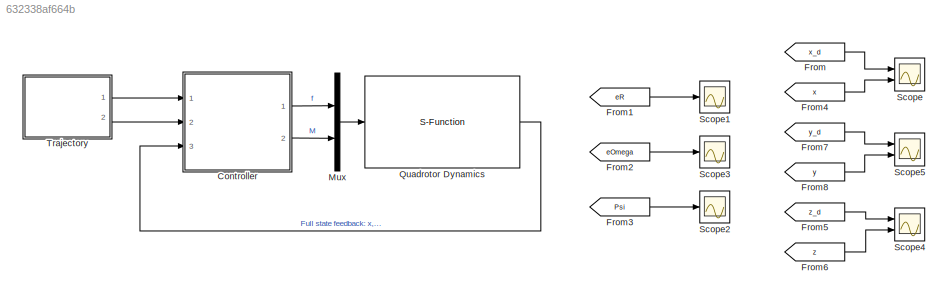
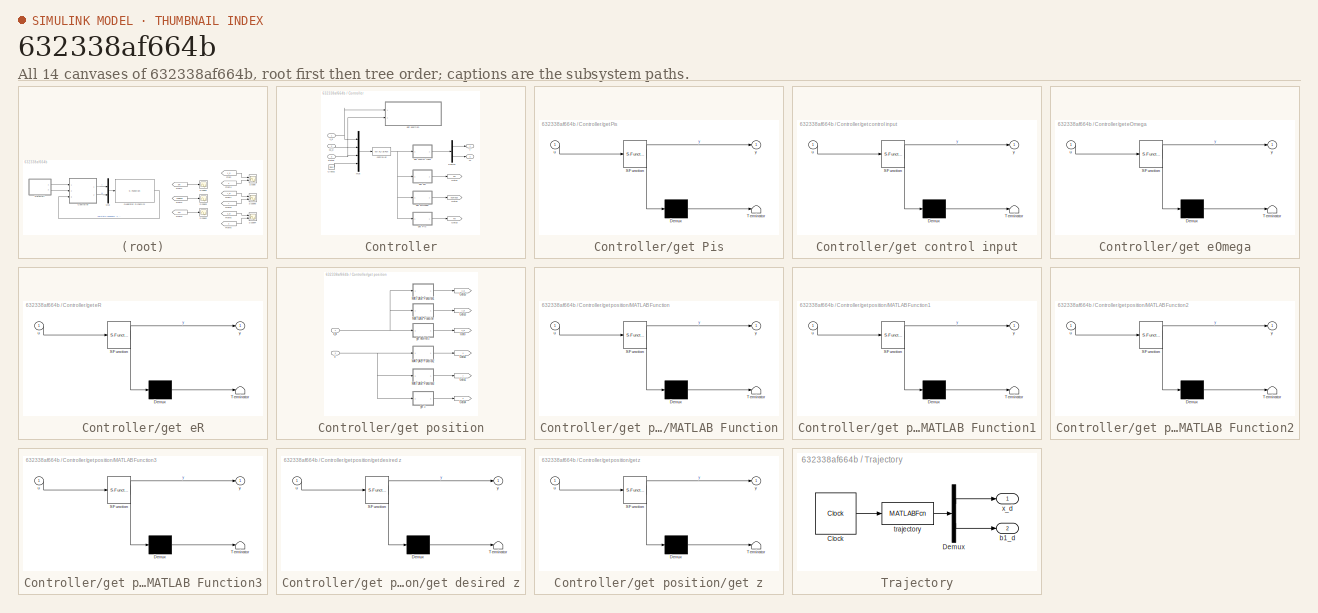
[diagram: thumbnail index - all 14 canvases of the model, root first then tree order]
MODEL slx_632338af664b
KIND model
CONFIG AbsTol = auto
CONFIG EnableMultiTasking = on
CONFIG FixedStep = 0.001
CONFIG InitFcn = param
CONFIG MaxStep = auto
CONFIG MinStep = auto
CONFIG RelTol = 1e-3
CONFIG SampleTimeConstraint = Unconstrained
CONFIG Solver = ode45
CONFIG SolverName = ode45
CONFIG StartTime = 0.0
CONFIG StopTime = 20
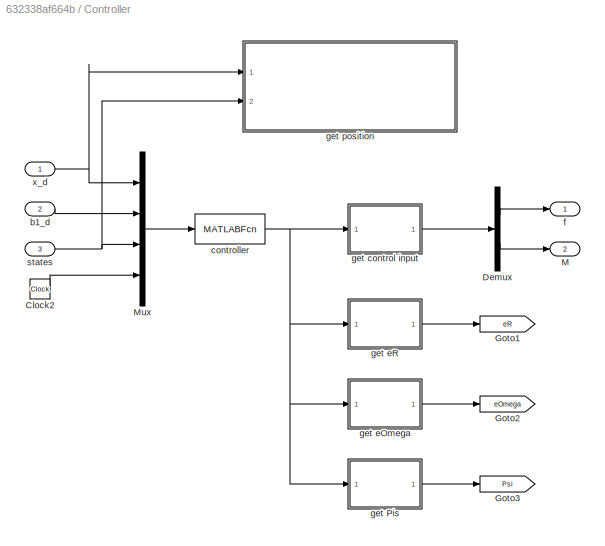
BLOCK [SubSystem] Controller
  Ports = [3, 2]
  RequestExecContextInheritance = off
BLOCK [Clock] Controller/Clock2
BLOCK [Demux] Controller/Demux
  DisplayOption = bar
  Outputs = 2
  Ports = [1, 2]
BLOCK [Goto] Controller/Goto1
  GotoTag = eR
  TagVisibility = global
BLOCK [Goto] Controller/Goto2
  GotoTag = eOmega
  TagVisibility = global
BLOCK [Goto] Controller/Goto3
  GotoTag = Psi
  TagVisibility = global
BLOCK [Outport] Controller/M
  IconDisplay = Port number
  Port = 2
BLOCK [Mux] Controller/Mux
  DisplayOption = bar
  Ports = [4, 1]
BLOCK [Inport] Controller/b1_d
  IconDisplay = Port number
  Port = 2
BLOCK [MATLABFcn] Controller/controller
  MATLABFcn = controller(u,P)
  OutputDimensions = 11
  Ports = [1, 1]
  SampleTime = P.Ts
BLOCK [Outport] Controller/f
  IconDisplay = Port number
BLOCK [SubSystem] Controller/get Pis
  ErrorFcn = Stateflow.Translate.translate
  PermitHierarchicalResolution = ExplicitOnly
  Ports = [1, 1]
  RequestExecContextInheritance = off
  SFBlockType = MATLAB Function
  TreatAsAtomicUnit = on
BLOCK [Demux] Controller/get Pis/ Demux 
  Outputs = 1
  Ports = [1, 1]
BLOCK [S-Function] Controller/get Pis/ SFunction 
  EnableBusSupport = on
  FunctionName = sf_sfun
  PortCounts = [1 2]
  Ports = [1, 2]
  SFcnIsStateOwnerBlock = off
  SFunctionDeploymentMode = off
  Tag = Stateflow S-Function quadsim 5
BLOCK [Terminator] Controller/get Pis/ Terminator 
BLOCK [Inport] Controller/get Pis/u
  IconDisplay = Port number
BLOCK [Outport] Controller/get Pis/y
  IconDisplay = Port number
BLOCK [SubSystem] Controller/get control input
  ErrorFcn = Stateflow.Translate.translate
  PermitHierarchicalResolution = ExplicitOnly
  Ports = [1, 1]
  RequestExecContextInheritance = off
  SFBlockType = MATLAB Function
  TreatAsAtomicUnit = on
BLOCK [Demux] Controller/get control input/ Demux 
  Outputs = 1
  Ports = [1, 1]
BLOCK [S-Function] Controller/get control input/ SFunction 
  EnableBusSupport = on
  FunctionName = sf_sfun
  PortCounts = [1 2]
  Ports = [1, 2]
  SFcnIsStateOwnerBlock = off
  SFunctionDeploymentMode = off
  Tag = Stateflow S-Function quadsim 4
BLOCK [Terminator] Controller/get control input/ Terminator 
BLOCK [Inport] Controller/get control input/u
  IconDisplay = Port number
BLOCK [Outport] Controller/get control input/y
  IconDisplay = Port number
BLOCK [SubSystem] Controller/get eOmega
  ErrorFcn = Stateflow.Translate.translate
  PermitHierarchicalResolution = ExplicitOnly
  Ports = [1, 1]
  RequestExecContextInheritance = off
  SFBlockType = MATLAB Function
  TreatAsAtomicUnit = on
BLOCK [Demux] Controller/get eOmega/ Demux 
  Outputs = 1
  Ports = [1, 1]
BLOCK [S-Function] Controller/get eOmega/ SFunction 
  EnableBusSupport = on
  FunctionName = sf_sfun
  PortCounts = [1 2]
  Ports = [1, 2]
  SFcnIsStateOwnerBlock = off
  SFunctionDeploymentMode = off
  Tag = Stateflow S-Function quadsim 3
BLOCK [Terminator] Controller/get eOmega/ Terminator 
BLOCK [Inport] Controller/get eOmega/u
  IconDisplay = Port number
BLOCK [Outport] Controller/get eOmega/y
  IconDisplay = Port number
BLOCK [SubSystem] Controller/get eR
  ErrorFcn = Stateflow.Translate.translate
  PermitHierarchicalResolution = ExplicitOnly
  Ports = [1, 1]
  RequestExecContextInheritance = off
  SFBlockType = MATLAB Function
  TreatAsAtomicUnit = on
BLOCK [Demux] Controller/get eR/ Demux 
  Outputs = 1
  Ports = [1, 1]
BLOCK [S-Function] Controller/get eR/ SFunction 
  EnableBusSupport = on
  FunctionName = sf_sfun
  PortCounts = [1 2]
  Ports = [1, 2]
  SFcnIsStateOwnerBlock = off
  SFunctionDeploymentMode = off
  Tag = Stateflow S-Function quadsim 1
BLOCK [Terminator] Controller/get eR/ Terminator 
BLOCK [Inport] Controller/get eR/u
  IconDisplay = Port number
BLOCK [Outport] Controller/get eR/y
  IconDisplay = Port number
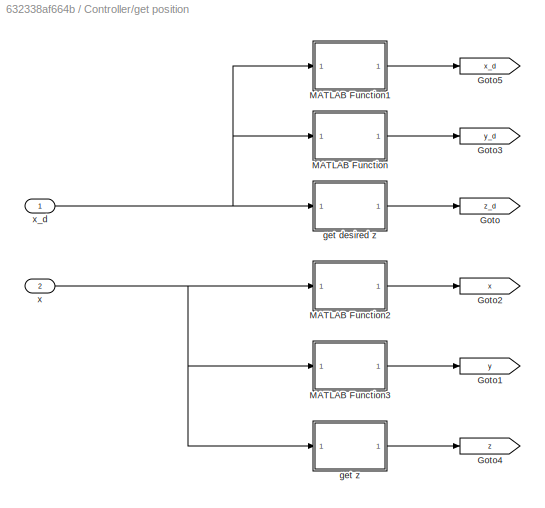
BLOCK [SubSystem] Controller/get position
  Ports = [2]
  RequestExecContextInheritance = off
BLOCK [Goto] Controller/get position/Goto
  GotoTag = z_d
  TagVisibility = global
BLOCK [Goto] Controller/get position/Goto1
  GotoTag = y
  TagVisibility = global
BLOCK [Goto] Controller/get position/Goto2
  GotoTag = x
  TagVisibility = global
BLOCK [Goto] Controller/get position/Goto3
  GotoTag = y_d
  TagVisibility = global
BLOCK [Goto] Controller/get position/Goto4
  GotoTag = z
  TagVisibility = global
BLOCK [Goto] Controller/get position/Goto5
  GotoTag = x_d
  TagVisibility = global
BLOCK [SubSystem] Controller/get position/MATLAB Function
  ErrorFcn = Stateflow.Translate.translate
  PermitHierarchicalResolution = ExplicitOnly
  Ports = [1, 1]
  RequestExecContextInheritance = off
  SFBlockType = MATLAB Function
  TreatAsAtomicUnit = on
BLOCK [Demux] Controller/get position/MATLAB Function/ Demux 
  Outputs = 1
  Ports = [1, 1]
BLOCK [S-Function] Controller/get position/MATLAB Function/ SFunction 
  EnableBusSupport = on
  FunctionName = sf_sfun
  PortCounts = [1 2]
  Ports = [1, 2]
  SFcnIsStateOwnerBlock = off
  SFunctionDeploymentMode = off
  Tag = Stateflow S-Function quadsim 7
BLOCK [Terminator] Controller/get position/MATLAB Function/ Terminator 
BLOCK [Inport] Controller/get position/MATLAB Function/u
  IconDisplay = Port number
BLOCK [Outport] Controller/get position/MATLAB Function/y
  IconDisplay = Port number
BLOCK [SubSystem] Controller/get position/MATLAB Function1
  ErrorFcn = Stateflow.Translate.translate
  PermitHierarchicalResolution = ExplicitOnly
  Ports = [1, 1]
  RequestExecContextInheritance = off
  SFBlockType = MATLAB Function
  TreatAsAtomicUnit = on
BLOCK [Demux] Controller/get position/MATLAB Function1/ Demux 
  Outputs = 1
  Ports = [1, 1]
BLOCK [S-Function] Controller/get position/MATLAB Function1/ SFunction 
  EnableBusSupport = on
  FunctionName = sf_sfun
  PortCounts = [1 2]
  Ports = [1, 2]
  SFcnIsStateOwnerBlock = off
  SFunctionDeploymentMode = off
  Tag = Stateflow S-Function quadsim 8
BLOCK [Terminator] Controller/get position/MATLAB Function1/ Terminator 
BLOCK [Inport] Controller/get position/MATLAB Function1/u
  IconDisplay = Port number
BLOCK [Outport] Controller/get position/MATLAB Function1/y
  IconDisplay = Port number
BLOCK [SubSystem] Controller/get position/MATLAB Function2
  ErrorFcn = Stateflow.Translate.translate
  PermitHierarchicalResolution = ExplicitOnly
  Ports = [1, 1]
  RequestExecContextInheritance = off
  SFBlockType = MATLAB Function
  TreatAsAtomicUnit = on
BLOCK [Demux] Controller/get position/MATLAB Function2/ Demux 
  Outputs = 1
  Ports = [1, 1]
BLOCK [S-Function] Controller/get position/MATLAB Function2/ SFunction 
  EnableBusSupport = on
  FunctionName = sf_sfun
  PortCounts = [1 2]
  Ports = [1, 2]
  SFcnIsStateOwnerBlock = off
  SFunctionDeploymentMode = off
  Tag = Stateflow S-Function quadsim 9
BLOCK [Terminator] Controller/get position/MATLAB Function2/ Terminator 
BLOCK [Inport] Controller/get position/MATLAB Function2/u
  IconDisplay = Port number
BLOCK [Outport] Controller/get position/MATLAB Function2/y
  IconDisplay = Port number
BLOCK [SubSystem] Controller/get position/MATLAB Function3
  ErrorFcn = Stateflow.Translate.translate
  PermitHierarchicalResolution = ExplicitOnly
  Ports = [1, 1]
  RequestExecContextInheritance = off
  SFBlockType = MATLAB Function
  TreatAsAtomicUnit = on
BLOCK [Demux] Controller/get position/MATLAB Function3/ Demux 
  Outputs = 1
  Ports = [1, 1]
BLOCK [S-Function] Controller/get position/MATLAB Function3/ SFunction 
  EnableBusSupport = on
  FunctionName = sf_sfun
  PortCounts = [1 2]
  Ports = [1, 2]
  SFcnIsStateOwnerBlock = off
  SFunctionDeploymentMode = off
  Tag = Stateflow S-Function quadsim 10
BLOCK [Terminator] Controller/get position/MATLAB Function3/ Terminator 
BLOCK [Inport] Controller/get position/MATLAB Function3/u
  IconDisplay = Port number
BLOCK [Outport] Controller/get position/MATLAB Function3/y
  IconDisplay = Port number
BLOCK [SubSystem] Controller/get position/get desired z
  ErrorFcn = Stateflow.Translate.translate
  PermitHierarchicalResolution = ExplicitOnly
  Ports = [1, 1]
  RequestExecContextInheritance = off
  SFBlockType = MATLAB Function
  TreatAsAtomicUnit = on
BLOCK [Demux] Controller/get position/get desired z/ Demux 
  Outputs = 1
  Ports = [1, 1]
BLOCK [S-Function] Controller/get position/get desired z/ SFunction 
  EnableBusSupport = on
  FunctionName = sf_sfun
  PortCounts = [1 2]
  Ports = [1, 2]
  SFcnIsStateOwnerBlock = off
  SFunctionDeploymentMode = off
  Tag = Stateflow S-Function quadsim 2
BLOCK [Terminator] Controller/get position/get desired z/ Terminator 
BLOCK [Inport] Controller/get position/get desired z/u
  IconDisplay = Port number
BLOCK [Outport] Controller/get position/get desired z/y
  IconDisplay = Port number
BLOCK [SubSystem] Controller/get position/get z
  ErrorFcn = Stateflow.Translate.translate
  PermitHierarchicalResolution = ExplicitOnly
  Ports = [1, 1]
  RequestExecContextInheritance = off
  SFBlockType = MATLAB Function
  TreatAsAtomicUnit = on
BLOCK [Demux] Controller/get position/get z/ Demux 
  Outputs = 1
  Ports = [1, 1]
BLOCK [S-Function] Controller/get position/get z/ SFunction 
  EnableBusSupport = on
  FunctionName = sf_sfun
  PortCounts = [1 2]
  Ports = [1, 2]
  SFcnIsStateOwnerBlock = off
  SFunctionDeploymentMode = off
  Tag = Stateflow S-Function quadsim 6
BLOCK [Terminator] Controller/get position/get z/ Terminator 
BLOCK [Inport] Controller/get position/get z/u
  IconDisplay = Port number
BLOCK [Outport] Controller/get position/get z/y
  IconDisplay = Port number
BLOCK [Inport] Controller/get position/x
  IconDisplay = Port number
  Port = 2
BLOCK [Inport] Controller/get position/x_d
  IconDisplay = Port number
BLOCK [Inport] Controller/states
  IconDisplay = Port number
  Port = 3
BLOCK [Inport] Controller/x_d
  IconDisplay = Port number
BLOCK [From] From
  GotoTag = x_d
  TagVisibility = global
BLOCK [From] From1
  GotoTag = eR
  TagVisibility = global
BLOCK [From] From2
  GotoTag = eOmega
  TagVisibility = global
BLOCK [From] From3
  GotoTag = Psi
  TagVisibility = global
BLOCK [From] From4
  GotoTag = x
  TagVisibility = global
BLOCK [From] From5
  GotoTag = z_d
  TagVisibility = global
BLOCK [From] From6
  GotoTag = z
  TagVisibility = global
BLOCK [From] From7
  GotoTag = y_d
  TagVisibility = global
BLOCK [From] From8
  GotoTag = y
  TagVisibility = global
BLOCK [Mux] Mux
  DisplayOption = bar
  Inputs = 2
  Ports = [2, 1]
BLOCK [S-Function] Quadrotor Dynamics
  EnableBusSupport = off
  FunctionName = quad_dynamics
  Parameters = P
  Ports = [1, 1]
  SFcnIsStateOwnerBlock = off
  SFunctionDeploymentMode = off
BLOCK [Scope] Scope
  Floating = off
  NumInputPorts = 2
  Ports = [2]
  ScopeSpecificationString = Simulink.scopes.TimeScopeBlockCfg('CurrentConfiguration', extmgr.ConfigurationSet(extmgr.Configuration('Core','General UI',true),extmgr.Configuration('Core','Source UI',true),extmgr.Configuration('Sources','WiredSimulink',true),extmgr.Configuration('Visuals','Time Domain',true,'SerializedDisplays',{struct('MinYLimReal','-1.28501','MaxYLimReal','1.36438','YLabelReal','','MinYLimMag','0.00000','MaxY...<+1409ch>
BLOCK [Scope] Scope1
  Floating = off
  NumInputPorts = 1
  Ports = [1]
  ScopeSpecificationString = Simulink.scopes.TimeScopeBlockCfg('CurrentConfiguration', extmgr.ConfigurationSet(extmgr.Configuration('Core','General UI',true),extmgr.Configuration('Core','Source UI',true),extmgr.Configuration('Sources','WiredSimulink',true,'DataLoggingVariableName','ScopeData4'),extmgr.Configuration('Visuals','Time Domain',true,'SerializedDisplays',{struct('MinYLimReal','-1.08367','MaxYLimReal','1.03486','YLab...<+1463ch>
BLOCK [Scope] Scope2
  Floating = off
  NumInputPorts = 1
  Ports = [1]
  ScopeSpecificationString = Simulink.scopes.TimeScopeBlockCfg('CurrentConfiguration', extmgr.ConfigurationSet(extmgr.Configuration('Core','General UI',true),extmgr.Configuration('Core','Source UI',true),extmgr.Configuration('Sources','WiredSimulink',true,'DataLoggingVariableName','ScopeData5'),extmgr.Configuration('Visuals','Time Domain',true,'SerializedDisplays',{struct('MinYLimReal','-0.16841','MaxYLimReal','1.51567','YLab...<+1365ch>
BLOCK [Scope] Scope3
  Floating = off
  NumInputPorts = 1
  Ports = [1]
  ScopeSpecificationString = Simulink.scopes.TimeScopeBlockCfg('CurrentConfiguration', extmgr.ConfigurationSet(extmgr.Configuration('Core','General UI',true),extmgr.Configuration('Core','Source UI',true),extmgr.Configuration('Sources','WiredSimulink',true,'DataLoggingVariableName','ScopeData6'),extmgr.Configuration('Visuals','Time Domain',true,'SerializedDisplays',{struct('MinYLimReal','-3.40607','MaxYLimReal','3.2375','YLabe...<+1485ch>
BLOCK [Scope] Scope4
  Floating = off
  NumInputPorts = 2
  Ports = [2]
  ScopeSpecificationString = Simulink.scopes.TimeScopeBlockCfg('CurrentConfiguration', extmgr.ConfigurationSet(extmgr.Configuration('Core','General UI',true),extmgr.Configuration('Core','Source UI',true),extmgr.Configuration('Sources','WiredSimulink',true,'DataLoggingVariableName','ScopeData1'),extmgr.Configuration('Visuals','Time Domain',true,'SerializedDisplays',{struct('MinYLimReal','-0.25002','MaxYLimReal','2.25014','YLab...<+1418ch>
BLOCK [Scope] Scope5
  Floating = off
  NumInputPorts = 2
  Ports = [2]
  ScopeSpecificationString = Simulink.scopes.TimeScopeBlockCfg('CurrentConfiguration', extmgr.ConfigurationSet(extmgr.Configuration('Core','General UI',true),extmgr.Configuration('Core','Source UI',true),extmgr.Configuration('Sources','WiredSimulink',true,'DataLoggingVariableName','ScopeData2'),extmgr.Configuration('Visuals','Time Domain',true,'SerializedDisplays',{struct('MinYLimReal','-1.32638','MaxYLimReal','1.28079','YLab...<+1418ch>
BLOCK [SubSystem] Trajectory
  Ports = [0, 2]
  RequestExecContextInheritance = off
BLOCK [Clock] Trajectory/Clock
  DisplayTime = on
BLOCK [Demux] Trajectory/Demux
  DisplayOption = bar
  Outputs = 2
  Ports = [1, 2]
BLOCK [Outport] Trajectory/b1_d
  IconDisplay = Port number
  Port = 2
BLOCK [MATLABFcn] Trajectory/trajectory
  MATLABFcn = trajectory(u,P)
  OutputDimensions = 12
  Ports = [1, 1]
BLOCK [Outport] Trajectory/x_d
  IconDisplay = Port number
LINE Controller/Clock2:1 -> Controller/Mux:4
LINE Controller/Demux:1 -> Controller/f:1
LINE Controller/Demux:2 -> Controller/M:1
LINE Controller/Mux:1 -> Controller/controller:1
LINE Controller/b1_d:1 -> Controller/Mux:2
NET Controller/controller:1 -> Controller/get Pis:1, Controller/get control input:1, Controller/get eOmega:1, Controller/get eR:1
LINE Controller/get Pis:1 -> Controller/Goto3:1
LINE Controller/get control input:1 -> Controller/Demux:1
LINE Controller/get eOmega:1 -> Controller/Goto2:1
LINE Controller/get eR:1 -> Controller/Goto1:1
LINE Controller/get position/MATLAB Function1:1 -> Controller/get position/Goto5:1
LINE Controller/get position/MATLAB Function2:1 -> Controller/get position/Goto2:1
LINE Controller/get position/MATLAB Function3:1 -> Controller/get position/Goto1:1
LINE Controller/get position/MATLAB Function:1 -> Controller/get position/Goto3:1
LINE Controller/get position/get desired z:1 -> Controller/get position/Goto:1
LINE Controller/get position/get z:1 -> Controller/get position/Goto4:1
NET Controller/get position/x:1 -> Controller/get position/MATLAB Function2:1, Controller/get position/MATLAB Function3:1, Controller/get position/get z:1
NET Controller/get position/x_d:1 -> Controller/get position/MATLAB Function1:1, Controller/get position/MATLAB Function:1, Controller/get position/get desired z:1
NET Controller/states:1 -> Controller/Mux:3, Controller/get position:2
NET Controller/x_d:1 -> Controller/Mux:1, Controller/get position:1
LINE Controller:1 -> Mux:1
LINE Controller:2 -> Mux:2
LINE From1:1 -> Scope1:1
LINE From2:1 -> Scope3:1
LINE From3:1 -> Scope2:1
LINE From4:1 -> Scope:2
LINE From5:1 -> Scope4:1
LINE From6:1 -> Scope4:2
LINE From7:1 -> Scope5:1
LINE From8:1 -> Scope5:2
LINE From:1 -> Scope:1
LINE Mux:1 -> Quadrotor Dynamics:1
LINE Quadrotor Dynamics:1 -> Controller:3
LINE Trajectory/Clock:1 -> Trajectory/trajectory:1
LINE Trajectory/Demux:1 -> Trajectory/x_d:1
LINE Trajectory/Demux:2 -> Trajectory/b1_d:1
LINE Trajectory/trajectory:1 -> Trajectory/Demux:1
LINE Trajectory:1 -> Controller:1
LINE Trajectory:2 -> Controller:2
note: NET lines group one-source signal fan-out (src -> all destinations, sorted); 1:1 wires keep LINE
CHART Controller/get eR states=1 transitions=1
  STATE_LABEL 'eML_blk_kernel()'
  STATE_LABEL 'SCRIPT:\nfunction y = fcn(u)\n\ny = u(5:7);\n'
CHART Controller/get position/get desired z states=1 transitions=1
  STATE_LABEL 'eML_blk_kernel()'
  STATE_LABEL 'SCRIPT:\nfunction y = fcn(u)\n\ny = u(3);\n'
CHART Controller/get eOmega states=1 transitions=1
  STATE_LABEL 'eML_blk_kernel()'
  STATE_LABEL 'SCRIPT:\nfunction y = fcn(u)\n\ny = u(8:10);\n'
CHART Controller/get control input states=1 transitions=1
  STATE_LABEL 'eML_blk_kernel()'
  STATE_LABEL 'SCRIPT:\nfunction y = fcn(u)\n\ny = u(1:4);\n'
CHART Controller/get Pis states=1 transitions=1
  STATE_LABEL 'eML_blk_kernel()'
  STATE_LABEL 'SCRIPT:\nfunction y = fcn(u)\n\ny = u(11);\n'
CHART Controller/get position/get z states=1 transitions=1
  STATE_LABEL 'eML_blk_kernel()'
  STATE_LABEL 'SCRIPT:\nfunction y = fcn(u)\n\ny = u(3);\n'
CHART Controller/get position/MATLAB Function states=1 transitions=1
  STATE_LABEL 'eML_blk_kernel()'
  STATE_LABEL 'SCRIPT:\nfunction y = fcn(u)\n\ny = u(2);\n'
CHART Controller/get position/MATLAB Function1 states=1 transitions=1
  STATE_LABEL 'eML_blk_kernel()'
  STATE_LABEL 'SCRIPT:\nfunction y = fcn(u)\n\ny = u(1);\n'
CHART Controller/get position/MATLAB Function2 states=1 transitions=1
  STATE_LABEL 'eML_blk_kernel()'
  STATE_LABEL 'SCRIPT:\nfunction y = fcn(u)\n\ny = u(1);\n'
CHART Controller/get position/MATLAB Function3 states=1 transitions=1
  STATE_LABEL 'eML_blk_kernel()'
  STATE_LABEL 'SCRIPT:\nfunction y = fcn(u)\n\ny = u(2);\n'
